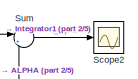
[diagram: root canvas - part 1/5, top right region]
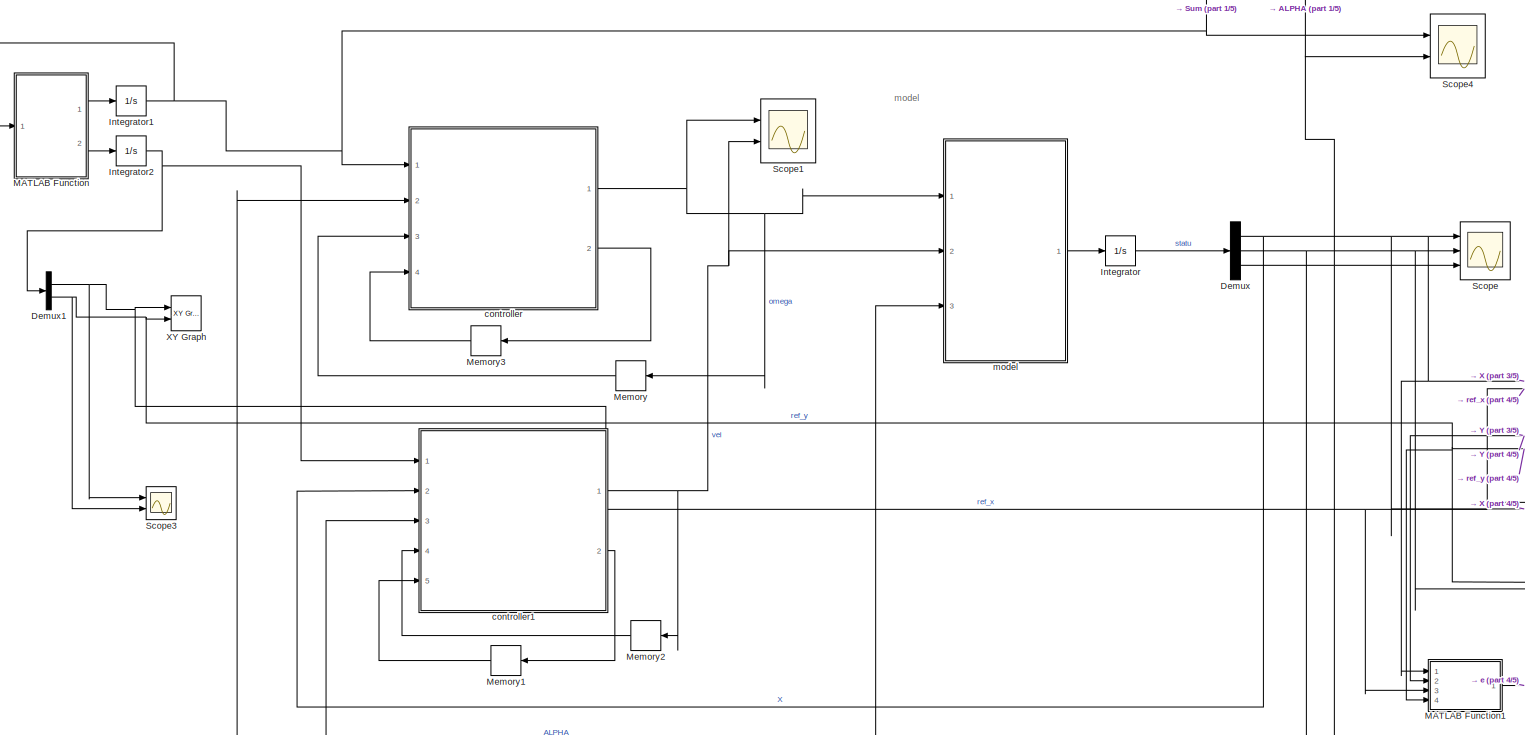
[diagram: root canvas - part 2/5, most of the canvas]
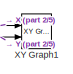
[diagram: root canvas - part 3/5, middle right region]
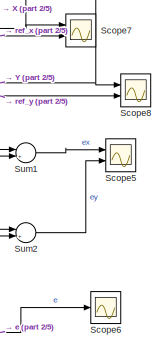
[diagram: root canvas - part 4/5, bottom right region]
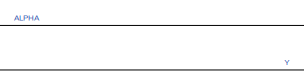
[diagram: root canvas - part 5/5, bottom center region]
MODEL slx_8d8883538459
KIND model
CONFIG AbsTol = auto
CONFIG EnableMultiTasking = off
CONFIG FixedStep = 0.05
CONFIG MaxStep = 0.05
CONFIG MinStep = auto
CONFIG RelTol = 1e-3
CONFIG SampleTimeConstraint = Unconstrained
CONFIG Solver = ode5
CONFIG SolverName = ode5
CONFIG StartTime = 0.0
CONFIG StopTime = 30
BLOCK [Demux] Demux
  DisplayOption = bar
  Outputs = 3
  Ports = [1, 3]
BLOCK [Demux] Demux1
  DisplayOption = bar
  Outputs = 2
  Ports = [1, 2]
BLOCK [Integrator] Integrator
  IgnoreLimit = on
  InitialCondition = [1 -1 0 ]
  Ports = [1, 1]
BLOCK [Integrator] Integrator1
  InitialCondition = pi/3
  Ports = [1, 1]
BLOCK [Integrator] Integrator2
  Ports = [1, 1]
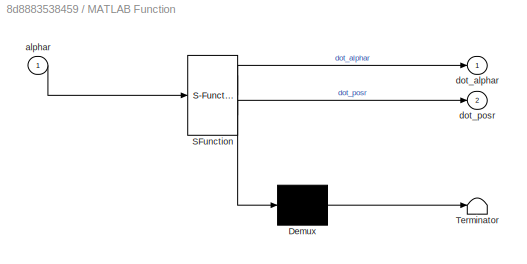
BLOCK [SubSystem] MATLAB Function
  ErrorFcn = Stateflow.Translate.translate
  PermitHierarchicalResolution = ExplicitOnly
  Ports = [1, 2]
  RequestExecContextInheritance = off
  SFBlockType = MATLAB Function
  TreatAsAtomicUnit = on
  Variant = off
BLOCK [Demux] MATLAB Function/ Demux 
  Outputs = 1
  Ports = [1, 1]
BLOCK [S-Function] MATLAB Function/ SFunction 
  EnableBusSupport = on
  FunctionName = sf_sfun
  PortCounts = [1 3]
  Ports = [1, 3]
  SFcnIsStateOwnerBlock = off
  SFunctionDeploymentMode = off
  Tag = Stateflow S-Function Copy_of_PID 3
BLOCK [Terminator] MATLAB Function/ Terminator 
BLOCK [Inport] MATLAB Function/alphar
  IconDisplay = Port number
BLOCK [Outport] MATLAB Function/dot_alphar
  IconDisplay = Port number
BLOCK [Outport] MATLAB Function/dot_posr
  IconDisplay = Port number
  Port = 2
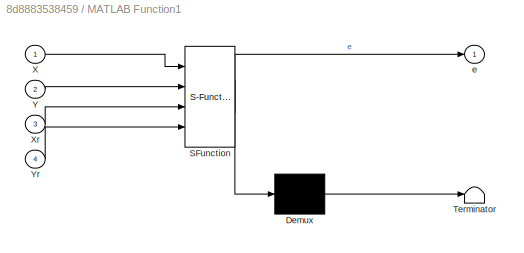
BLOCK [SubSystem] MATLAB Function1
  ErrorFcn = Stateflow.Translate.translate
  PermitHierarchicalResolution = ExplicitOnly
  Ports = [4, 1]
  RequestExecContextInheritance = off
  SFBlockType = MATLAB Function
  TreatAsAtomicUnit = on
  Variant = off
BLOCK [Demux] MATLAB Function1/ Demux 
  Outputs = 1
  Ports = [1, 1]
BLOCK [S-Function] MATLAB Function1/ SFunction 
  EnableBusSupport = on
  FunctionName = sf_sfun
  PortCounts = [4 2]
  Ports = [4, 2]
  SFcnIsStateOwnerBlock = off
  SFunctionDeploymentMode = off
  Tag = Stateflow S-Function Copy_of_PID 5
BLOCK [Terminator] MATLAB Function1/ Terminator 
BLOCK [Inport] MATLAB Function1/X
  IconDisplay = Port number
BLOCK [Inport] MATLAB Function1/Xr
  IconDisplay = Port number
  Port = 3
BLOCK [Inport] MATLAB Function1/Y
  IconDisplay = Port number
  Port = 2
BLOCK [Inport] MATLAB Function1/Yr
  IconDisplay = Port number
  Port = 4
BLOCK [Outport] MATLAB Function1/e
  IconDisplay = Port number
BLOCK [Memory] Memory
BLOCK [Memory] Memory1
  X0 = [0 0 0 0]
BLOCK [Memory] Memory2
BLOCK [Memory] Memory3
  X0 = [0 0]
BLOCK [Scope] Scope
  NumInputPorts = 3
  Ports = [3]
  ScopeSpecificationString = Simulink.scopes.TimeScopeBlockCfg('CurrentConfiguration', extmgr.ConfigurationSet(extmgr.Configuration('Core','General UI',true),extmgr.Configuration('Core','Source UI',true),extmgr.Configuration('Sources','WiredSimulink',true,'DataLoggingVariableName','ScopeData1'),extmgr.Configuration('Visuals','Time Domain',true,'SerializedDisplays',{struct('MinYLimReal','-4.75442','MaxYLimReal','48.02777','YLa...<+2837ch>
BLOCK [Scope] Scope1
  NumInputPorts = 2
  Ports = [2]
  ScopeSpecificationString = Simulink.scopes.TimeScopeBlockCfg('CurrentConfiguration', extmgr.ConfigurationSet(extmgr.Configuration('Core','General UI',true),extmgr.Configuration('Core','Source UI',true),extmgr.Configuration('Sources','WiredSimulink',true,'DataLoggingVariableName','ScopeData1'),extmgr.Configuration('Visuals','Time Domain',true,'SerializedDisplays',{struct('MinYLimReal','-0.31702','MaxYLimReal','0.642','YLabel...<+2146ch>
BLOCK [Scope] Scope2
  NumInputPorts = 1
  Ports = [1]
  ScopeSpecificationString = Simulink.scopes.TimeScopeBlockCfg('CurrentConfiguration', extmgr.ConfigurationSet(extmgr.Configuration('Core','General UI',true),extmgr.Configuration('Core','Source UI',true),extmgr.Configuration('Sources','WiredSimulink',true,'DataLoggingVariableName','ScopeData2'),extmgr.Configuration('Visuals','Time Domain',true,'SerializedDisplays',{struct('MinYLimReal','-0.69609','MaxYLimReal','1.2409','YLabe...<+1494ch>
BLOCK [Scope] Scope3
  NumInputPorts = 2
  Ports = [2]
  ScopeSpecificationString = Simulink.scopes.TimeScopeBlockCfg('CurrentConfiguration', extmgr.ConfigurationSet(extmgr.Configuration('Core','General UI',true),extmgr.Configuration('Core','Source UI',true),extmgr.Configuration('Sources','WiredSimulink',true,'DataLoggingVariableName','ScopeData1'),extmgr.Configuration('Visuals','Time Domain',true,'SerializedDisplays',{struct('MinYLimReal','-2.65165','MaxYLimReal','23.86485','YLa...<+1992ch>
BLOCK [Scope] Scope4
  NumInputPorts = 2
  Ports = [2]
  ScopeSpecificationString = Simulink.scopes.TimeScopeBlockCfg('CurrentConfiguration', extmgr.ConfigurationSet(extmgr.Configuration('Core','General UI',true),extmgr.Configuration('Core','Source UI',true),extmgr.Configuration('Sources','WiredSimulink',true,'DataLoggingVariableName','ScopeData1'),extmgr.Configuration('Visuals','Time Domain',true,'SerializedDisplays',{struct('MinYLimReal','-0.19635','MaxYLimReal','1.76715','YLab...<+1567ch>
BLOCK [Scope] Scope5
  NumInputPorts = 2
  Ports = [2]
  ScopeSpecificationString = Simulink.scopes.TimeScopeBlockCfg('CurrentConfiguration', extmgr.ConfigurationSet(extmgr.Configuration('Core','General UI',true),extmgr.Configuration('Core','Source UI',true),extmgr.Configuration('Sources','WiredSimulink',true,'DataLoggingVariableName','ScopeData2'),extmgr.Configuration('Visuals','Time Domain',true,'SerializedDisplays',{struct('MinYLimReal','-1.83924','MaxYLimReal','-0.08332','YLa...<+2151ch>
BLOCK [Scope] Scope6
  NumInputPorts = 1
  Ports = [1]
  ScopeSpecificationString = Simulink.scopes.TimeScopeBlockCfg('CurrentConfiguration', extmgr.ConfigurationSet(extmgr.Configuration('Core','General UI',true),extmgr.Configuration('Core','Source UI',true),extmgr.Configuration('Sources','WiredSimulink',true,'DataLoggingVariableName','ScopeData1'),extmgr.Configuration('Visuals','Time Domain',true,'SerializedDisplays',{struct('MinYLimReal','0.98688','MaxYLimReal','5.26023','YLabe...<+1483ch>
BLOCK [Scope] Scope7
  NumInputPorts = 2
  Ports = [2]
  ScopeSpecificationString = Simulink.scopes.TimeScopeBlockCfg('CurrentConfiguration', extmgr.ConfigurationSet(extmgr.Configuration('Core','General UI',true),extmgr.Configuration('Core','Source UI',true),extmgr.Configuration('Sources','WiredSimulink',true,'DataLoggingVariableName','ScopeData4'),extmgr.Configuration('Visuals','Time Domain',true,'SerializedDisplays',{struct('MinYLimReal','-5.34369','MaxYLimReal','48.09324','YLa...<+1438ch>
BLOCK [Scope] Scope8
  NumInputPorts = 2
  Ports = [2]
  ScopeSpecificationString = Simulink.scopes.TimeScopeBlockCfg('CurrentConfiguration', extmgr.ConfigurationSet(extmgr.Configuration('Core','General UI',true),extmgr.Configuration('Core','Source UI',true),extmgr.Configuration('Sources','WiredSimulink',true,'DataLoggingVariableName','ScopeData5'),extmgr.Configuration('Visuals','Time Domain',true,'SerializedDisplays',{struct('MinYLimReal','-4.37561','MaxYLimReal','29.35369','YLa...<+1453ch>
BLOCK [Sum] Sum
  IconShape = round
  InputSameDT = off
  Inputs = |+-
  OutDataTypeStr = Inherit: Inherit via internal rule
  Ports = [2, 1]
  SaturateOnIntegerOverflow = off
BLOCK [Sum] Sum1
  IconShape = round
  InputSameDT = off
  Inputs = |+-
  OutDataTypeStr = Inherit: Inherit via internal rule
  Ports = [2, 1]
  SaturateOnIntegerOverflow = off
BLOCK [Sum] Sum2
  IconShape = round
  InputSameDT = off
  Inputs = |+-
  OutDataTypeStr = Inherit: Inherit via internal rule
  Ports = [2, 1]
  SaturateOnIntegerOverflow = off
BLOCK [Reference] XY Graph  REF=simulink/Sinks/XY Graph
  Ports = [2]
  SourceBlock = simulink/Sinks/XY Graph
  SourceProductBaseCode = SL
  SourceProductName = Simulink
  SourceType = XY scope.
BLOCK [Reference] XY Graph1  REF=simulink/Sinks/XY Graph
  Ports = [2]
  SourceBlock = simulink/Sinks/XY Graph
  SourceProductBaseCode = SL
  SourceProductName = Simulink
  SourceType = XY scope.
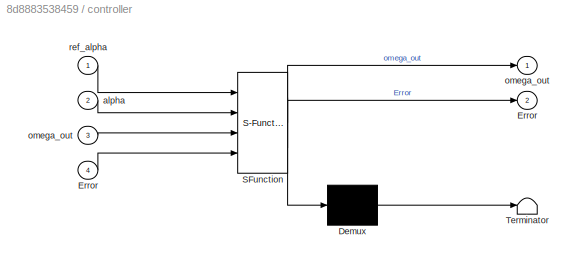
BLOCK [SubSystem] controller
  ErrorFcn = Stateflow.Translate.translate
  PermitHierarchicalResolution = ExplicitOnly
  Ports = [4, 2]
  RequestExecContextInheritance = off
  SFBlockType = MATLAB Function
  TreatAsAtomicUnit = on
  Variant = off
BLOCK [Demux] controller/ Demux 
  Outputs = 1
  Ports = [1, 1]
BLOCK [S-Function] controller/ SFunction 
  EnableBusSupport = on
  FunctionName = sf_sfun
  PortCounts = [4 3]
  Ports = [4, 3]
  SFcnIsStateOwnerBlock = off
  SFunctionDeploymentMode = off
  Tag = Stateflow S-Function Copy_of_PID 1
BLOCK [Terminator] controller/ Terminator 
BLOCK [Outport] controller/Error
  IconDisplay = Port number
  Port = 2
BLOCK [Inport] controller/Error 
  IconDisplay = Port number
  Port = 4
BLOCK [Inport] controller/alpha
  IconDisplay = Port number
  Port = 2
BLOCK [Outport] controller/omega_out
  IconDisplay = Port number
BLOCK [Inport] controller/omega_out 
  IconDisplay = Port number
  Port = 3
BLOCK [Inport] controller/ref_alpha
  IconDisplay = Port number
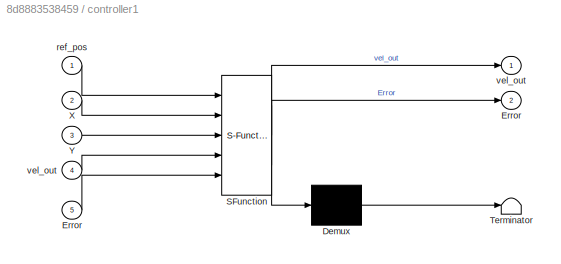
BLOCK [SubSystem] controller1
  ErrorFcn = Stateflow.Translate.translate
  PermitHierarchicalResolution = ExplicitOnly
  Ports = [5, 2]
  RequestExecContextInheritance = off
  SFBlockType = MATLAB Function
  TreatAsAtomicUnit = on
  Variant = off
BLOCK [Demux] controller1/ Demux 
  Outputs = 1
  Ports = [1, 1]
BLOCK [S-Function] controller1/ SFunction 
  EnableBusSupport = on
  FunctionName = sf_sfun
  PortCounts = [5 3]
  Ports = [5, 3]
  SFcnIsStateOwnerBlock = off
  SFunctionDeploymentMode = off
  Tag = Stateflow S-Function Copy_of_PID 4
BLOCK [Terminator] controller1/ Terminator 
BLOCK [Outport] controller1/Error
  IconDisplay = Port number
  Port = 2
BLOCK [Inport] controller1/Error 
  IconDisplay = Port number
  Port = 5
BLOCK [Inport] controller1/X
  IconDisplay = Port number
  Port = 2
BLOCK [Inport] controller1/Y
  IconDisplay = Port number
  Port = 3
BLOCK [Inport] controller1/ref_pos
  IconDisplay = Port number
BLOCK [Outport] controller1/vel_out
  IconDisplay = Port number
BLOCK [Inport] controller1/vel_out 
  IconDisplay = Port number
  Port = 4
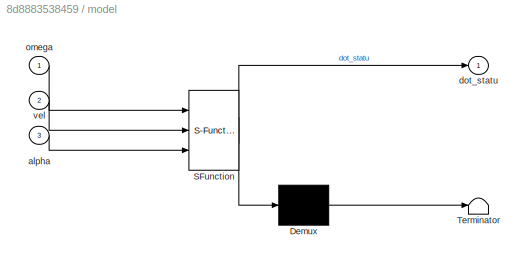
BLOCK [SubSystem] model
  ErrorFcn = Stateflow.Translate.translate
  PermitHierarchicalResolution = ExplicitOnly
  Ports = [3, 1]
  RequestExecContextInheritance = off
  SFBlockType = MATLAB Function
  TreatAsAtomicUnit = on
  Variant = off
BLOCK [Demux] model/ Demux 
  Outputs = 1
  Ports = [1, 1]
BLOCK [S-Function] model/ SFunction 
  EnableBusSupport = on
  FunctionName = sf_sfun
  PortCounts = [3 2]
  Ports = [3, 2]
  SFcnIsStateOwnerBlock = off
  SFunctionDeploymentMode = off
  Tag = Stateflow S-Function Copy_of_PID 2
BLOCK [Terminator] model/ Terminator 
BLOCK [Inport] model/alpha
  IconDisplay = Port number
  Port = 3
BLOCK [Outport] model/dot_statu
  IconDisplay = Port number
BLOCK [Inport] model/omega
  IconDisplay = Port number
BLOCK [Inport] model/vel
  IconDisplay = Port number
  Port = 2
ANNOTATION (root): model
NET Demux1:1 -> MATLAB Function1:3, Scope3:1, Scope7:2, Sum1:1, XY Graph:1
NET Demux1:2 -> MATLAB Function1:4, Scope3:2, Scope8:2, Sum2:1, XY Graph:2
NET Demux:1 -> MATLAB Function1:1, Scope7:1, Scope:1, Sum1:2, XY Graph1:1, controller1:2
NET Demux:2 -> MATLAB Function1:2, Scope8:1, Scope:2, Sum2:2, XY Graph1:2, controller1:3
NET Demux:3 -> Scope4:2, Scope:3, Sum:2, controller:2, model:3
NET Integrator1:1 -> MATLAB Function:1, Scope4:1, Sum:1, controller:1
NET Integrator2:1 -> Demux1:1, controller1:1
LINE Integrator:1 -> Demux:1
LINE MATLAB Function1:1 -> Scope6:1
LINE MATLAB Function:1 -> Integrator1:1
LINE MATLAB Function:2 -> Integrator2:1
LINE Memory1:1 -> controller1:5
LINE Memory2:1 -> controller1:4
LINE Memory3:1 -> controller:4
LINE Memory:1 -> controller:3
LINE Sum1:1 -> Scope5:1
LINE Sum2:1 -> Scope5:2
LINE Sum:1 -> Scope2:1
NET controller1:1 -> Memory2:1, Scope1:2, model:2
LINE controller1:2 -> Memory1:1
NET controller:1 -> Memory:1, Scope1:1, model:1
LINE controller:2 -> Memory3:1
LINE model:1 -> Integrator:1
note: NET lines group one-source signal fan-out (src -> all destinations, sorted); 1:1 wires keep LINE
CHART controller states=1 transitions=1
  STATE_LABEL 'eML_blk_kernel()'
  STATE_LABEL 'SCRIPT:\nfunction [omega_out,Error] = my_alpha_controller(ref_alpha, alpha, omega_out,Error)\n% 程序上没有问题，在运动学模型上是可以完成任务的\n% 最近修改时间：11. 20\n% 基于运动学模型的   控制器\n% u_out=[vx ;  omega]\n% ref_vel=[xr yr alphar vr omegar]\n% % e = [ex ey ealpha]\n% \n% \n\n%% 状态量                                                                           \nalpha = alpha;   alphar=ref_alpha;\n\ne2k=alphar-alpha;\n\ne2k_1=Error(1);\ne2k_2=Err...<+1422ch>'
CHART model states=1 transitions=1
  STATE_LABEL 'eML_blk_kernel()'
  STATE_LABEL 'SCRIPT:\nfunction dot_statu  = model(omega,vel,alpha)\n\n\n\ndot_alpha = omega;\ndot_X=vel*cos(alpha);\ndot_Y=vel*sin(alpha);\n\n\n\n% 状态【x y alpha vx vy omega】\ndot_statu = [dot_X,dot_Y,dot_alpha];\n\nend\n\n% max=1/wheel_radius;\n% for i=1:size(wheel_omega,2)\n%     if wheel_omega(i)>max\n%         wheel_omega(i) = max;\n%     else\n%         if wheel_omega(i)<-max\n%             wheel_omega(i) = -max;\n%         else...<+78ch>'
CHART MATLAB Function states=1 transitions=1
  STATE_LABEL 'eML_blk_kernel()'
  STATE_LABEL 'SCRIPT:\nfunction [dot_alphar,dot_posr] = ref(alphar)\n\n\nomegar=0;\n\nvelr=1;\ndot_alphar = omegar;\ndot_xr=velr*cos(alphar);\ndot_yr=velr*sin(alphar);\n\ndot_posr=[dot_xr;dot_yr];\n\nend'
CHART controller1 states=1 transitions=1
  STATE_LABEL 'eML_blk_kernel()'
  STATE_LABEL 'SCRIPT:\nfunction [vel_out,Error] = my_vel_controller(ref_pos, X,Y, vel_out,Error)\n% 程序上没有问题，在运动学模型上是可以完成任务的\n% 最近修改时间：11. 20\n% 基于运动学模型的   控制器\n% u_out=[vx ;  omega]\n% ref_vel=[xr yr alphar vr omegar]\n% % e = [ex ey ealpha]\n% \n%\n%% 状态量                                                                           \nXr =  ref_pos(1);   Yr =  ref_pos(2);\nex=Xr-X\ney=Yr-Y\n%  ek=sqrt(ex^2+ey^2)        % 误差有问题\n%...<+1747ch>'
CHART MATLAB Function1 states=1 transitions=1
  STATE_LABEL 'eML_blk_kernel()'
  STATE_LABEL 'SCRIPT:\nfunction e = fcn(X,Y,Xr,Yr)\n\n\nrhor=sqrt(Xr^2+Yr^2);\nrho=sqrt(X^2+Y^2);\ne=rhor-rho\n\n\ne= sqrt( (Yr-Y)^2  + (Xr-X)^2 )\n\nend\n\n% 42.4^2+42.4^2\n% \n% 43.6^2+41.2^2'
